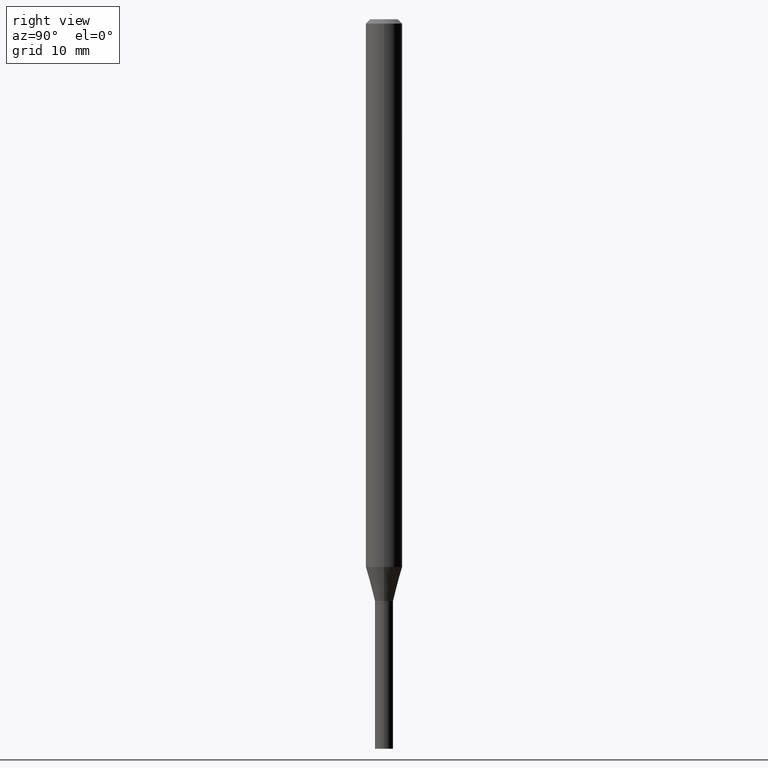
[diagram: clean part render]
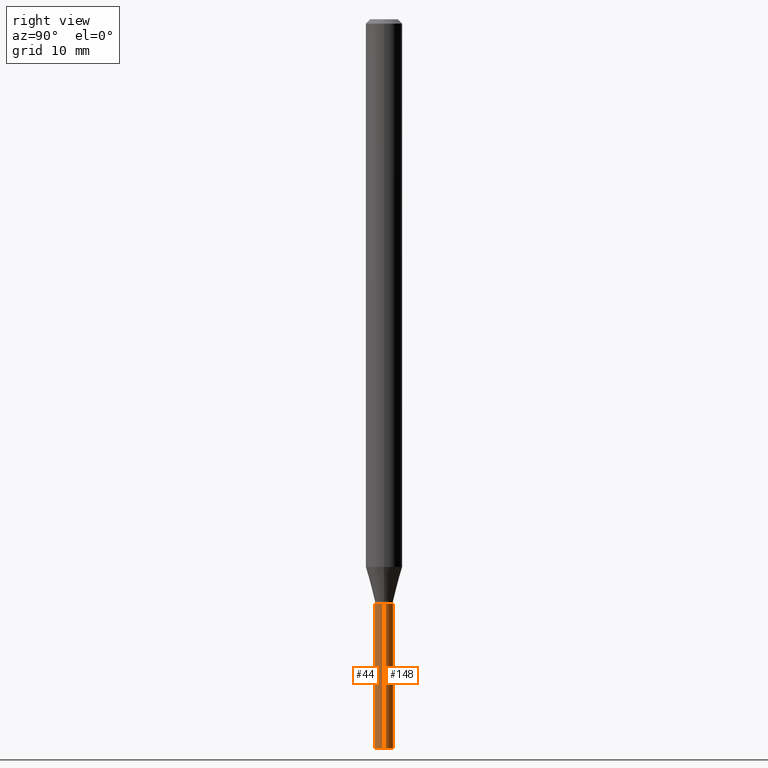
[diagram: same view with one multi-face feature highlighted, each face labeled with its STEP entity id]
A machine part, right view. The highlighted faces form ONE feature: a constant-radius fillet chain: 2 tangent blend faces with common blend radius 0.7874 mm. The faces share edges in the B-rep.
Their STEP definitions:
[1] entity #148 (Cylinder):
#14 = CARTESIAN_POINT ( 'NONE',  ( 0.03099999999999999978, -7.213400446049938314E-15, -2.004000000000000448 ) ) ;
#16 = ORIENTED_EDGE ( 'NONE', *, *, #368, .F. ) ;
#42 = AXIS2_PLACEMENT_3D ( 'NONE', #200, #206, #280 ) ;
#69 = VERTEX_POINT ( 'NONE', #461 ) ;
#70 = CIRCLE ( 'NONE', #407, 0.03099999999999999978 ) ;
#72 = CARTESIAN_POINT ( 'NONE',  ( -0.03099999999999999978, -7.642547726989132421E-15, -2.004000000000000448 ) ) ;
#81 = LINE ( 'NONE', #376, #317 ) ;
#94 = CIRCLE ( 'NONE', #114, 0.03099999999999999978 ) ;
#103 = LINE ( 'NONE', #397, #269 ) ;
#111 = DIRECTION ( 'NONE',  ( 1.000000000000000000, -6.982962677686270655E-15, 0.000000000000000000 ) ) ;
#114 = AXIS2_PLACEMENT_3D ( 'NONE', #140, #434, #111 ) ;
#116 = ORIENTED_EDGE ( 'NONE', *, *, #295, .F. ) ;
#139 = ORIENTED_EDGE ( 'NONE', *, *, #465, .T. ) ;
#140 = CARTESIAN_POINT ( 'NONE',  ( 4.900719487595014484E-29, -6.996928603041664772E-15, -2.004000000000000448 ) ) ;
#148 = ADVANCED_FACE ( 'NONE', ( #314 ), #167, .T. ) ;
#150 = VERTEX_POINT ( 'NONE', #320 ) ;
#167 = CYLINDRICAL_SURFACE ( 'NONE', #42, 0.03099999999999999978 ) ;
#181 = EDGE_CURVE ( 'NONE', #69, #150, #70, .T. ) ;
#200 = CARTESIAN_POINT ( 'NONE',  ( 0.000000000000000000, 0.000000000000000000, 0.000000000000000000 ) ) ;
#206 = DIRECTION ( 'NONE',  ( -2.445468806185136597E-29, 3.491481338843145583E-15, 1.000000000000000000 ) ) ;
#209 = DIRECTION ( 'NONE',  ( -2.445468806185136877E-29, 3.491481338843145188E-15, 1.000000000000000000 ) ) ;
#223 = DIRECTION ( 'NONE',  ( -2.445468806185136877E-29, 3.491481338843145188E-15, 1.000000000000000000 ) ) ;
#241 = CARTESIAN_POINT ( 'NONE',  ( 6.113672015462842613E-29, -8.728703347107864943E-15, -2.500000000000000000 ) ) ;
#246 = DIRECTION ( 'NONE',  ( 1.000000000000000000, -6.982962677686270655E-15, 0.000000000000000000 ) ) ;
#263 = ORIENTED_EDGE ( 'NONE', *, *, #181, .T. ) ;
#269 = VECTOR ( 'NONE', #209, 39.37007874015748143 ) ;
#280 = DIRECTION ( 'NONE',  ( 1.000000000000000000, -6.982962677686266711E-15, 4.876176775795935232E-29 ) ) ;
#295 = EDGE_CURVE ( 'NONE', #69, #442, #103, .T. ) ;
#314 = FACE_OUTER_BOUND ( 'NONE', #340, .T. ) ;
#317 = VECTOR ( 'NONE', #223, 39.37007874015748143 ) ;
#320 = CARTESIAN_POINT ( 'NONE',  ( -0.03099999999999999978, -7.642547726989132421E-15, -2.500000000000000000 ) ) ;
#340 = EDGE_LOOP ( 'NONE', ( #263, #139, #16, #116 ) ) ;
#368 = EDGE_CURVE ( 'NONE', #442, #381, #94, .T. ) ;
#376 = CARTESIAN_POINT ( 'NONE',  ( -0.03099999999999999978, 2.202682480856310560E-16, -1.524869877979020612E-30 ) ) ;
#381 = VERTEX_POINT ( 'NONE', #72 ) ;
#391 = DIRECTION ( 'NONE',  ( -2.445468806185136597E-29, 3.491481338843145583E-15, 1.000000000000000000 ) ) ;
#397 = CARTESIAN_POINT ( 'NONE',  ( 0.03099999999999999978, -2.164718430082742572E-16, 1.511614800496739984E-30 ) ) ;
#407 = AXIS2_PLACEMENT_3D ( 'NONE', #241, #391, #246 ) ;
#434 = DIRECTION ( 'NONE',  ( -2.445468806185136597E-29, 3.491481338843145583E-15, 1.000000000000000000 ) ) ;
#442 = VERTEX_POINT ( 'NONE', #14 ) ;
#461 = CARTESIAN_POINT ( 'NONE',  ( 0.03099999999999999978, -8.945175190116139274E-15, -2.500000000000000000 ) ) ;
#465 = EDGE_CURVE ( 'NONE', #150, #381, #81, .T. ) ;
[2] entity #44 (Cylinder):
#14 = CARTESIAN_POINT ( 'NONE',  ( 0.03099999999999999978, -7.213400446049938314E-15, -2.004000000000000448 ) ) ;
#18 = FACE_OUTER_BOUND ( 'NONE', #298, .T. ) ;
#21 = CARTESIAN_POINT ( 'NONE',  ( 0.000000000000000000, 0.000000000000000000, 0.000000000000000000 ) ) ;
#44 = ADVANCED_FACE ( 'NONE', ( #18 ), #159, .T. ) ;
#59 = DIRECTION ( 'NONE',  ( -2.445468806185136597E-29, 3.491481338843145583E-15, 1.000000000000000000 ) ) ;
#63 = DIRECTION ( 'NONE',  ( 1.000000000000000000, -6.982962677686270655E-15, 0.000000000000000000 ) ) ;
#69 = VERTEX_POINT ( 'NONE', #461 ) ;
#72 = CARTESIAN_POINT ( 'NONE',  ( -0.03099999999999999978, -7.642547726989132421E-15, -2.004000000000000448 ) ) ;
#81 = LINE ( 'NONE', #376, #317 ) ;
#103 = LINE ( 'NONE', #397, #269 ) ;
#108 = DIRECTION ( 'NONE',  ( 1.000000000000000000, -6.982962677686270655E-15, 0.000000000000000000 ) ) ;
#135 = EDGE_CURVE ( 'NONE', #381, #442, #242, .T. ) ;
#143 = DIRECTION ( 'NONE',  ( -2.445468806185136597E-29, 3.491481338843145583E-15, 1.000000000000000000 ) ) ;
#150 = VERTEX_POINT ( 'NONE', #320 ) ;
#159 = CYLINDRICAL_SURFACE ( 'NONE', #316, 0.03099999999999999978 ) ;
#163 = ORIENTED_EDGE ( 'NONE', *, *, #295, .T. ) ;
#187 = ORIENTED_EDGE ( 'NONE', *, *, #389, .T. ) ;
#198 = DIRECTION ( 'NONE',  ( -2.445468806185136597E-29, 3.491481338843145583E-15, 1.000000000000000000 ) ) ;
#209 = DIRECTION ( 'NONE',  ( -2.445468806185136877E-29, 3.491481338843145188E-15, 1.000000000000000000 ) ) ;
#223 = DIRECTION ( 'NONE',  ( -2.445468806185136877E-29, 3.491481338843145188E-15, 1.000000000000000000 ) ) ;
#242 = CIRCLE ( 'NONE', #423, 0.03099999999999999978 ) ;
#269 = VECTOR ( 'NONE', #209, 39.37007874015748143 ) ;
#295 = EDGE_CURVE ( 'NONE', #69, #442, #103, .T. ) ;
#298 = EDGE_LOOP ( 'NONE', ( #448, #187, #163, #401 ) ) ;
#316 = AXIS2_PLACEMENT_3D ( 'NONE', #21, #198, #388 ) ;
#317 = VECTOR ( 'NONE', #223, 39.37007874015748143 ) ;
#320 = CARTESIAN_POINT ( 'NONE',  ( -0.03099999999999999978, -7.642547726989132421E-15, -2.500000000000000000 ) ) ;
#353 = CARTESIAN_POINT ( 'NONE',  ( 4.900719487595014484E-29, -6.996928603041664772E-15, -2.004000000000000448 ) ) ;
#364 = CIRCLE ( 'NONE', #408, 0.03099999999999999978 ) ;
#376 = CARTESIAN_POINT ( 'NONE',  ( -0.03099999999999999978, 2.202682480856310560E-16, -1.524869877979020612E-30 ) ) ;
#381 = VERTEX_POINT ( 'NONE', #72 ) ;
#388 = DIRECTION ( 'NONE',  ( 1.000000000000000000, -6.982962677686266711E-15, 4.876176775795935232E-29 ) ) ;
#389 = EDGE_CURVE ( 'NONE', #150, #69, #364, .T. ) ;
#397 = CARTESIAN_POINT ( 'NONE',  ( 0.03099999999999999978, -2.164718430082742572E-16, 1.511614800496739984E-30 ) ) ;
#401 = ORIENTED_EDGE ( 'NONE', *, *, #135, .F. ) ;
#408 = AXIS2_PLACEMENT_3D ( 'NONE', #437, #143, #108 ) ;
#423 = AXIS2_PLACEMENT_3D ( 'NONE', #353, #59, #63 ) ;
#437 = CARTESIAN_POINT ( 'NONE',  ( 6.113672015462842613E-29, -8.728703347107864943E-15, -2.500000000000000000 ) ) ;
#442 = VERTEX_POINT ( 'NONE', #14 ) ;
#448 = ORIENTED_EDGE ( 'NONE', *, *, #465, .F. ) ;
#461 = CARTESIAN_POINT ( 'NONE',  ( 0.03099999999999999978, -8.945175190116139274E-15, -2.500000000000000000 ) ) ;
#465 = EDGE_CURVE ( 'NONE', #150, #381, #81, .T. ) ;